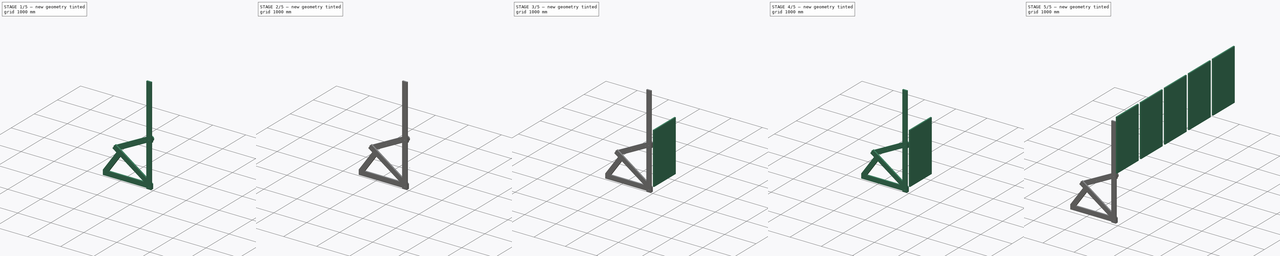
[diagram: build sequence overview — one tinted view per stage of 5, left to right]
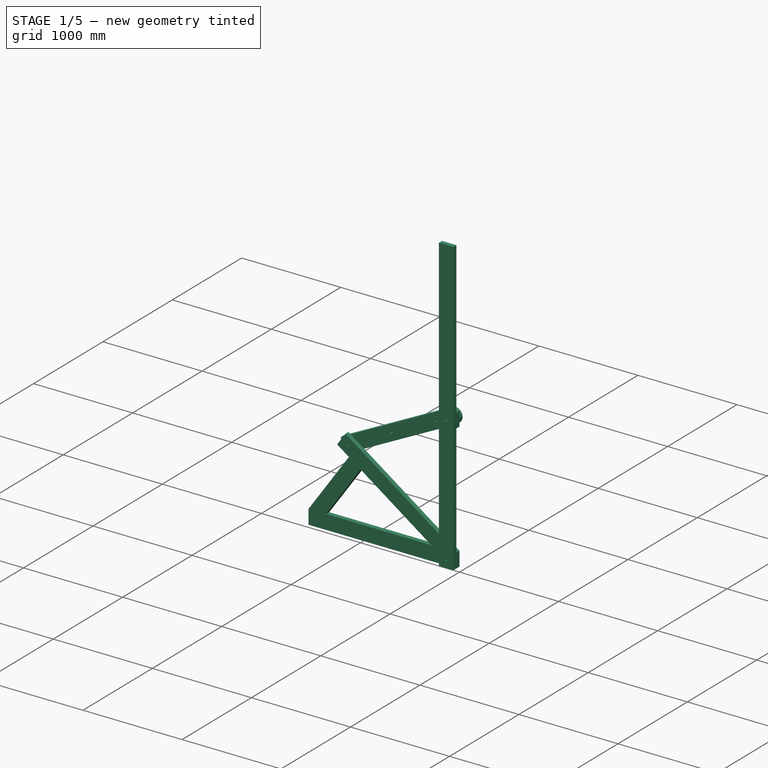
[diagram: stage 1 of 5 — iso view after this stage's code; geometry added in this stage tinted green]
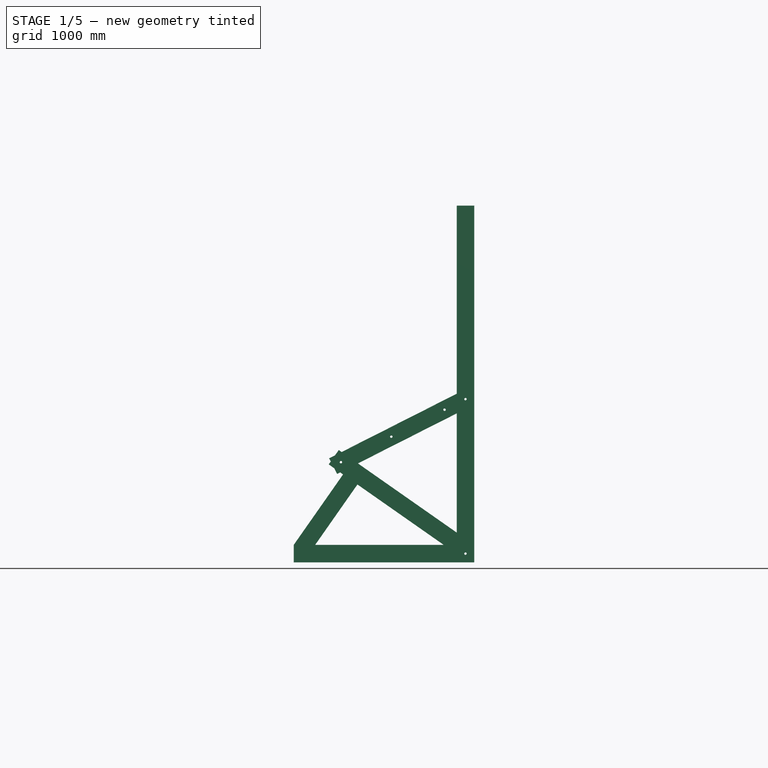
[diagram: stage 1 of 5 — front view after this stage's code; geometry added in this stage tinted green]
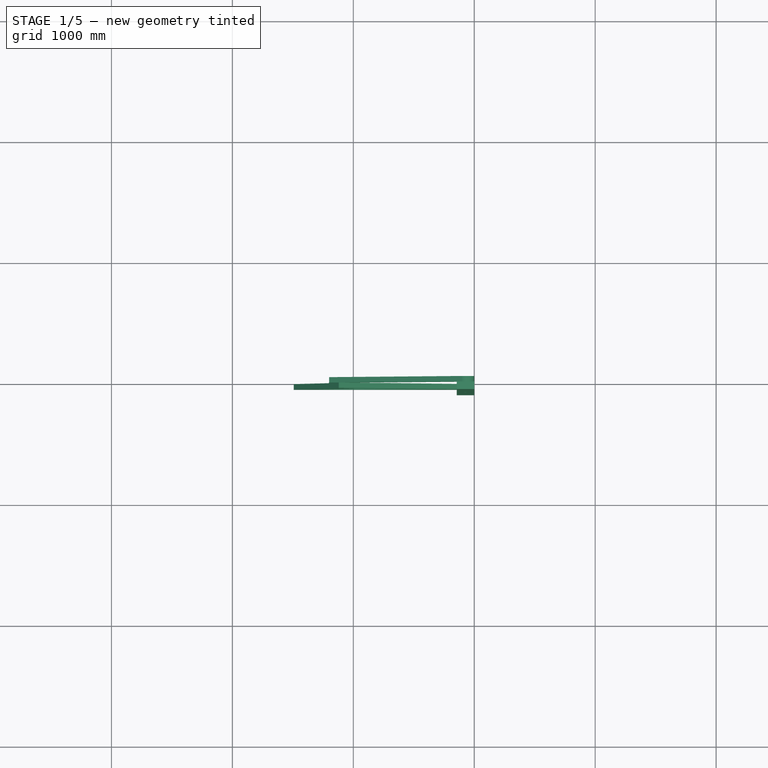
[diagram: stage 1 of 5 — top view after this stage's code; geometry added in this stage tinted green]
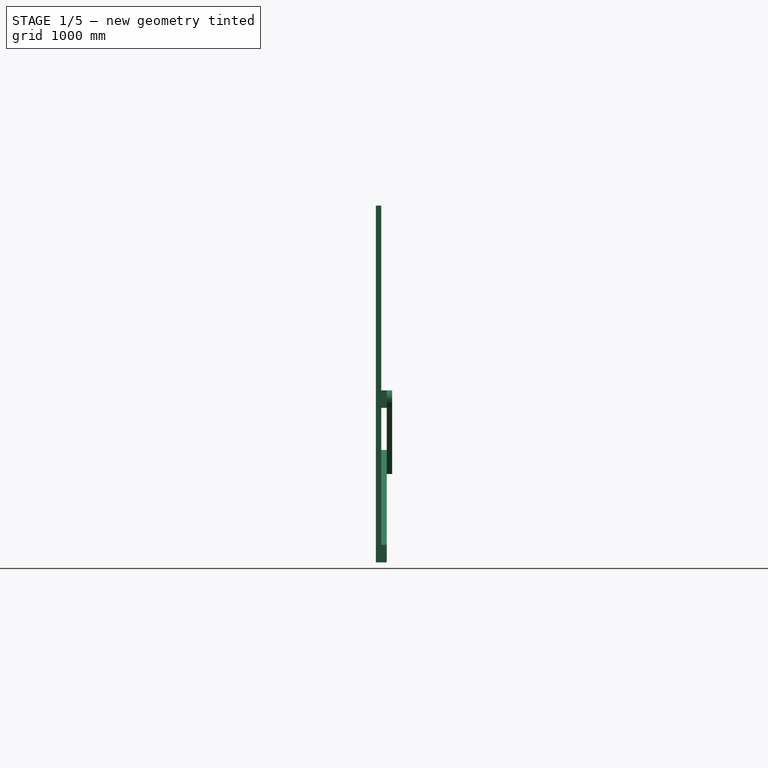
[diagram: stage 1 of 5 — right view after this stage's code; geometry added in this stage tinted green]
FCSTD DOCUMENT  (FreeCAD 0.16R)
Label: solar_mount3
License: All rights reserved
LicenseURL: http://en.wikipedia.org/wiki/All_rights_reserved
objects: Sketcher::SketchObject×7, PartDesign::Pad×7, Part::Cut×4, Part::Cylinder×4, Part::Fuse×2, Part::FeaturePython×1, App::DocumentObjectGroup×1
note: 32 computed .brp shape members not serialized (recipe doc carries the construction recipe); baked Part::Feature solids carry a one-line shape summary decoded from their .brp

FEATURE [App::DocumentObjectGroup] Group  label="Panels"
  Group = -> [Cut003,Array]
FEATURE [Sketcher::SketchObject] Sketch010
  Placement = pos=(0,0,0) rot=(-1,0,0;4.71239rad)
  sketch-geometry (18):
    g0: LineSegment StartX=0 StartY=0 StartZ=0 EndX=-1120.18 EndY=784.358 EndZ=0
    g1: LineSegment StartX=-1120.18 StartY=784.358 StartZ=0 EndX=-1203.35 EndY=665.581 EndZ=0
    g2: LineSegment StartX=-1203.35 StartY=665.581 StartZ=0 EndX=-1084.57 EndY=582.413 EndZ=0
    g3: LineSegment [constr] StartX=-1084.57 StartY=582.413 StartZ=0 EndX=-965.794 EndY=499.244 EndZ=0
    g4: LineSegment StartX=-965.794 StartY=499.244 StartZ=0 EndX=-252.8 EndY=0 EndZ=0
    g5: LineSegment [constr] StartX=-252.8 StartY=0 StartZ=0 EndX=0 EndY=0 EndZ=0
    g6: LineSegment StartX=0 StartY=-145 StartZ=0 EndX=-1492.38 EndY=-145 EndZ=0
    g7: LineSegment StartX=-1492.38 StartY=-145 StartZ=0 EndX=-1492.38 EndY=0 EndZ=0
    g8: LineSegment [constr] StartX=-1492.38 StartY=0 StartZ=0 EndX=-1315.37 EndY=0 EndZ=0
    g9: LineSegment StartX=-1315.37 StartY=0 StartZ=0 EndX=-252.8 EndY=0 EndZ=0
    g10: LineSegment StartX=-1492.38 StartY=0 StartZ=0 EndX=-1084.57 EndY=582.413 EndZ=0
    g11: LineSegment StartX=-965.794 StartY=499.244 StartZ=0 EndX=-1315.37 EndY=0 EndZ=0
    g12: Circle CenterX=-72.5 CenterY=-72.5 CenterZ=0 NormalX=0 NormalY=0 NormalZ=1 Radius=10
    g13: Circle CenterX=-1102.38 CenterY=683.385 CenterZ=0 NormalX=0 NormalY=0 NormalZ=1 Radius=10
    g14: LineSegment StartX=0 StartY=0 StartZ=0 EndX=0 EndY=-145 EndZ=0
    g15: LineSegment [constr] StartX=-1102.38 StartY=683.385 StartZ=0 EndX=-72.5 EndY=-72.5 EndZ=0
    g16: LineSegment [constr] StartX=-72.5 StartY=-72.5 StartZ=0 EndX=-72.5 EndY=1205 EndZ=0
    g17: LineSegment [constr] StartX=-72.5 StartY=1205 StartZ=0 EndX=0 EndY=1205 EndZ=0
  constraints (49):
    c: Coincident(g-1,g0)
    c: Coincident(g0,g1)
    c: Coincident(g1,g2)
    c: Coincident(g2,g3)
    c: Coincident(g3,g4)
    c: PointOnObject(g4,g-1)
    c: Coincident(g4,g5)
    c: Coincident(g5,g0)
    c: PointOnObject(g6,g-2)
    c: Horizontal(g6)
    c: Coincident(g6,g7)
    c: PointOnObject(g7,g-1)
    c: Vertical(g7)
    c: Coincident(g7,g8)
    c: PointOnObject(g8,g-1)
    c: Coincident(g8,g9)
    c: Coincident(g9,g4)
    c: Coincident(g7,g10)
    c: Coincident(g10,g2)
    c: Coincident(g3,g11)
    c: Coincident(g11,g8)
    c: Coincident(g-1,g14)
    c: Coincident(g14,g6)
    c: Parallel(g2,g3)
    c: Parallel(g3,g4)
    c: Parallel(g0,g4)
    c: Angle(g1,g0) = 1.5708
    c: Parallel(g10,g11)
    c: Angle(g9,g11) = 0.959931
    c: Angle(g4,g9) = 0.610865
    c: Distance(g1) = 145
    c: Distance(g3) = 145
    c: DistanceY(g14,g14) = 145
    c: Distance(g12,g14) = 72.5
    c: Distance(g12,g6) = 72.5
    c: Radius(g12) = 10
    c: Distance(g13,g0) = 72.5
    c: Distance(g13,g1) = 72.5
    c: Radius(g13) = 10
    c: Distance(g2) = 145
    c: Coincident(g15,g13)
    c: Coincident(g15,g12)
    c: Coincident(g16,g12)
    c: Vertical(g16)
    c: Coincident(g16,g17)
    c: Horizontal(g17)
    c: DistanceY(g6,g17) = 1350
    c: PointOnObject(g17,g-2)
    c: Equal(g16,g15)
FEATURE [PartDesign::Pad] Pad003
  Length = 45
  Length2 = 100
  Placement = pos=(0,0,0) rot=(-1,0,0;4.71239rad)
  Sketch = -> Sketch010
  Type = 0
FEATURE [Sketcher::SketchObject] Sketch011
  Placement = pos=(0,-45,0) rot=(-1,0,0;4.71239rad)
  sketch-geometry (7):
    g0: LineSegment StartX=0 StartY=-145 StartZ=0 EndX=-145 EndY=-145 EndZ=0
    g1: LineSegment StartX=-145 StartY=-145 StartZ=0 EndX=-145 EndY=2805 EndZ=0
    g2: LineSegment StartX=-145 StartY=2805 StartZ=0 EndX=0 EndY=2805 EndZ=0
    g3: LineSegment StartX=0 StartY=2805 StartZ=0 EndX=0 EndY=0 EndZ=0
    g4: LineSegment StartX=0 StartY=0 StartZ=0 EndX=0 EndY=-145 EndZ=0
    g5: Circle CenterX=-72.5 CenterY=-72.5 CenterZ=0 NormalX=0 NormalY=0 NormalZ=1 Radius=10
    g6: Circle CenterX=-72.5 CenterY=1205 CenterZ=0 NormalX=0 NormalY=0 NormalZ=1 Radius=10
  constraints (20):
    c: PointOnObject(g0,g-2)
    c: Horizontal(g0)
    c: Coincident(g0,g1)
    c: Vertical(g1)
    c: Coincident(g1,g2)
    c: Horizontal(g2)
    c: Coincident(g2,g3)
    c: Coincident(g3,g-1)
    c: Vertical(g3)
    c: Coincident(g3,g4)
    c: Coincident(g4,g0)
    c: Radius(g6) = 10
    c: Distance(g6,g3) = 72.5
    c: DistanceX(g0,g0) = 145
    c: Distance(g5,g4) = 72.5
    c: Radius(g5) = 10
    c: Distance(g5,g0) = 72.5
    c: Distance(g4) = 145
    c: Distance(g6,g0) = 1350
    c: Distance(g6,g2) = 1600
FEATURE [PartDesign::Pad] Pad004
  Length = 45
  Length2 = 100
  Placement = pos=(0,-45,0) rot=(-1,0,0;4.71239rad)
  Sketch = -> Sketch011
  Type = 0
FEATURE [Sketcher::SketchObject] Sketch012
  Placement = pos=(0,0,0) rot=(1,0,0;1.5708rad)
  sketch-geometry (6):
    g0: LineSegment StartX=-145 StartY=1277.5 StartZ=0 EndX=0 EndY=1277.5 EndZ=0
    g1: Circle CenterX=-72.5 CenterY=1205 CenterZ=0 NormalX=0 NormalY=0 NormalZ=1 Radius=10
    g2: LineSegment StartX=-145 StartY=1132.5 StartZ=0 EndX=0 EndY=1132.5 EndZ=0
    g3: LineSegment StartX=0 StartY=1277.5 StartZ=0 EndX=0 EndY=1132.5 EndZ=0
    g4: LineSegment StartX=-145 StartY=1277.5 StartZ=0 EndX=-145 EndY=1132.5 EndZ=0
    g5: GeomPoint [constr] X=-72.5 Y=-145 Z=0
  constraints (17):
    c: Horizontal(g0)
    c: Radius(g1) = 10
    c: Distance(g1,g0) = 72.5
    c: Horizontal(g2)
    c: Coincident(g0,g3)
    c: Coincident(g3,g2)
    c: Vertical(g3)
    c: Coincident(g0,g4)
    c: Coincident(g4,g2)
    c: Vertical(g4)
    c: DistanceX(g0,g0) = 145
    c: DistanceY(g4,g4) = 145
    c: DistanceY(g5,g-1) = 145
    c: DistanceX(g5,g-1) = 72.5
    c: DistanceY(g5,g1) = 1350
    c: Distance(g1,g3) = 72.5
    c: PointOnObject(g2,g-2)
FEATURE [PartDesign::Pad] Pad005
  Length = 45
  Length2 = 100
  Placement = pos=(0,0,0) rot=(1,0,0;1.5708rad)
  Sketch = -> Sketch012
  Type = 0
FEATURE [Sketcher::SketchObject] Sketch013
  Placement = pos=(0,45,0) rot=(1,0,0;1.5708rad)
  sketch-geometry (27):
    g0: LineSegment [constr] StartX=0 StartY=0 StartZ=0 EndX=-1120.18 EndY=784.358 EndZ=0
    g1: LineSegment [constr] StartX=-1120.18 StartY=784.358 StartZ=0 EndX=-1203.35 EndY=665.581 EndZ=0
    g2: Circle [constr] CenterX=-72.5 CenterY=-72.5 CenterZ=0 NormalX=0 NormalY=0 NormalZ=1 Radius=10
    g3: Circle CenterX=-1102.38 CenterY=683.385 CenterZ=0 NormalX=0 NormalY=0 NormalZ=1 Radius=10
    g4: LineSegment [constr] StartX=0 StartY=0 StartZ=0 EndX=0 EndY=-145 EndZ=0
    g5: LineSegment [constr] StartX=-1102.38 StartY=683.385 StartZ=0 EndX=-72.5 EndY=-72.5 EndZ=0
    g6: ArcOfCircle CenterX=-72.5 CenterY=1205 CenterZ=0 NormalX=0 NormalY=0 NormalZ=1 Radius=72.5 StartAngle=5.18121 EndAngle=8.3228
    g7: LineSegment StartX=-105.258 StartY=1269.68 StartZ=0 EndX=-1199.81 EndY=715.305 EndZ=0
    g8: LineSegment StartX=-1199.81 StartY=715.305 StartZ=0 EndX=-1134.29 EndY=585.95 EndZ=0
    g9: LineSegment StartX=-39.742 StartY=1140.32 StartZ=0 EndX=-1134.29 EndY=585.95 EndZ=0
    g10: LineSegment [constr] StartX=-105.258 StartY=1269.68 StartZ=0 EndX=-39.742 EndY=1140.32 EndZ=0
    g11: Circle CenterX=-72.5 CenterY=1205 CenterZ=0 NormalX=0 NormalY=0 NormalZ=1 Radius=10
    g12: LineSegment [constr] StartX=-72.5 StartY=1205 StartZ=0 EndX=0 EndY=1205 EndZ=0
    g13: LineSegment [constr] StartX=-72.5 StartY=-72.5 StartZ=0 EndX=-72.5 EndY=1205 EndZ=0
    g14: LineSegment [constr] StartX=-72.5 StartY=-72.5 StartZ=0 EndX=-561.378 EndY=1107.76 EndZ=0
    g15: LineSegment [constr] StartX=-72.5 StartY=-72.5 StartZ=0 EndX=-975.829 EndY=830.829 EndZ=0
    g16: LineSegment [constr] StartX=-975.829 StartY=830.829 StartZ=0 EndX=-1102.38 EndY=683.385 EndZ=0
    g17: LineSegment [constr] StartX=-1102.38 StartY=683.385 StartZ=0 EndX=-561.378 EndY=1107.76 EndZ=0
    g18: LineSegment [constr] StartX=-72.5 StartY=1205 StartZ=0 EndX=-245.838 EndY=1117.21 EndZ=0
    g19: LineSegment [constr] StartX=-72.5 StartY=1205 StartZ=0 EndX=-685.893 EndY=894.327 EndZ=0
    g20: LineSegment [constr] StartX=-245.838 StartY=1117.21 StartZ=0 EndX=-1102.38 EndY=683.385 EndZ=0
    g21: LineSegment [constr] StartX=-1102.38 StartY=683.385 StartZ=0 EndX=-1727.7 EndY=-45.1964 EndZ=0
    g22: Circle CenterX=-685.893 CenterY=894.327 CenterZ=0 NormalX=0 NormalY=0 NormalZ=1 Radius=10
    g23: Circle CenterX=-245.838 CenterY=1117.21 CenterZ=0 NormalX=0 NormalY=0 NormalZ=1 Radius=10
    g24: LineSegment [constr] StartX=-1727.7 StartY=-45.1964 StartZ=0 EndX=-1774.91 EndY=-100.212 EndZ=0
    g25: LineSegment [constr] StartX=-1774.91 StartY=-100.212 StartZ=0 EndX=-1719.9 EndY=-147.43 EndZ=0
    g26: LineSegment [constr] StartX=-1719.9 StartY=-147.43 StartZ=0 EndX=-1219.9 EndY=-147.43 EndZ=0
  constraints (71):
    c: Coincident(g-1,g0)
    c: Coincident(g0,g1)
    c: PointOnObject(g4,g-2)
    c: Coincident(g-1,g4)
    c: Angle(g1,g0) = 1.5708
    c: Distance(g1) = 145
    c: DistanceY(g4,g4) = 145
    c: Distance(g2,g4) = 72.5
    c: Radius(g2) = 10
    c: Distance(g3,g0) = 72.5
    c: Distance(g3,g1) = 72.5
    c: Radius(g3) = 10
    c: Coincident(g5,g3)
    c: Coincident(g5,g2)
    c: DistanceY(g4,g12) = 1350
    c: Angle(g-1,g0) = 2.53073
    c: DistanceY(g2,g-1) = 72.5
    c: Tangent(g6,g7) = -1.5708
    c: Coincident(g7,g8)
    c: Tangent(g6,g9) = 1.5708
    c: Coincident(g9,g8)
    c: Coincident(g10,g6)
    c: Coincident(g10,g6)
    c: Parallel(g10,g8)
    c: Equal(g10,g8)
    c: DistanceX(g6,g12) = 72.5
    c: DistanceY(g6,g12) = 0
    c: Distance(g3,g7) = 72.5
    c: Distance(g8) = 145
    c: Distance(g3,g8) = 72.5
    c: Coincident(g11,g6)
    c: Radius(g11) = 10
    c: Coincident(g12,g6)
    c: PointOnObject(g12,g-2)
    c: Coincident(g13,g2)
    c: Coincident(g13,g6)
    c: Coincident(g14,g2)
    c: Coincident(g15,g2)
    c: Angle(g13,g14) = 0.392699
    c: Angle(g13,g15) = 0.785398
    c: Equal(g13,g14)
    c: Equal(g14,g15)
    c: Coincident(g15,g16)
    c: Coincident(g16,g3)
    c: Coincident(g16,g17)
    c: Coincident(g17,g14)
    c: Equal(g5,g13)
    c: Coincident(g18,g6)
    c: Coincident(g19,g6)
    c: Equal(g18,g16)
    c: Equal(g19,g17)
    c: Coincident(g18,g20)
    c: Coincident(g20,g3)
    c: Coincident(g20,g21)
    c: Equal(g21,g20)
    c: Parallel(g21,g16)
    c: Parallel(g19,g9)
    c: Parallel(g18,g9)
    c: Coincident(g22,g19)
    c: Coincident(g23,g18)
    c: Radius(g23) = 10
    c: Radius(g22) = 10
    c: Coincident(g21,g24)
    c: Coincident(g24,g25)
    c: Parallel(g24,g21)
    c: Angle(g25,g24) = 1.5708
    c: Distance(g24) = 72.5
    c: Distance(g25) = 72.5
    c: Coincident(g25,g26)
    c: Horizontal(g26)
    c: DistanceX(g26,g26) = 500
FEATURE [PartDesign::Pad] Pad006
  Length = 45
  Length2 = 100
  Placement = pos=(0,45,0) rot=(1,0,0;1.5708rad)
  Sketch = -> Sketch013
  Type = 0
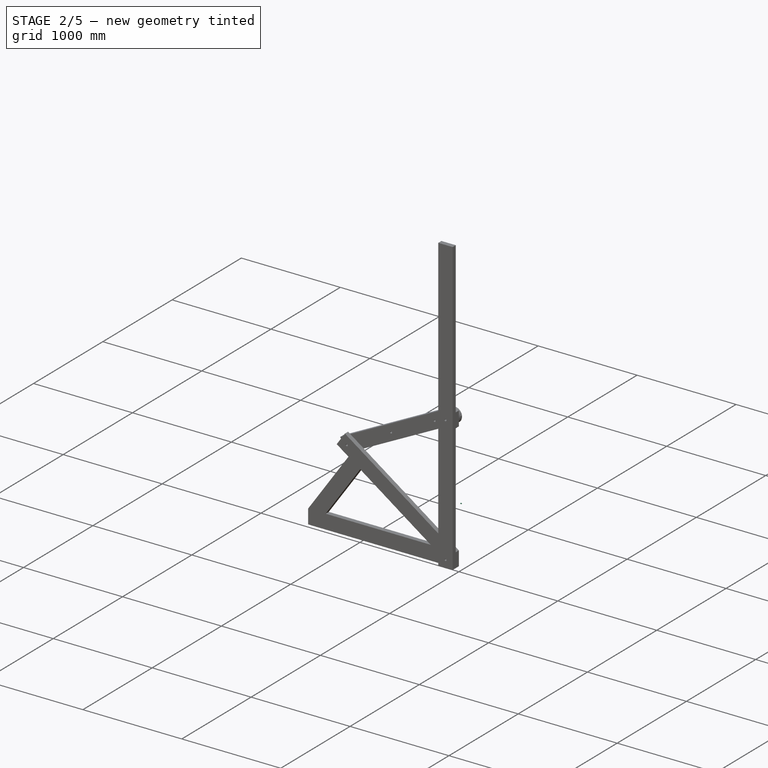
[diagram: stage 2 of 5 — iso view after this stage's code; geometry added in this stage tinted green]
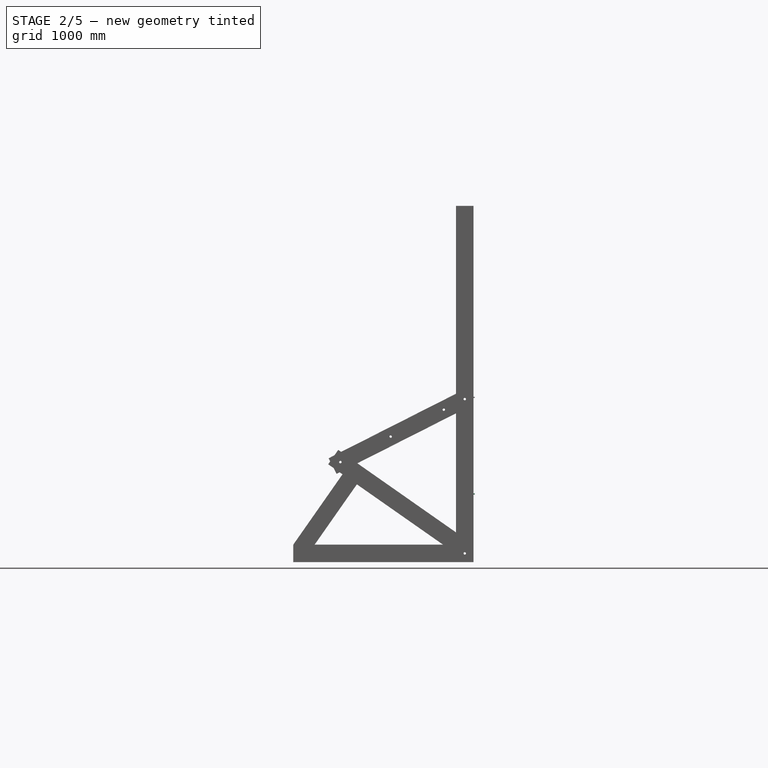
[diagram: stage 2 of 5 — front view after this stage's code; geometry added in this stage tinted green]
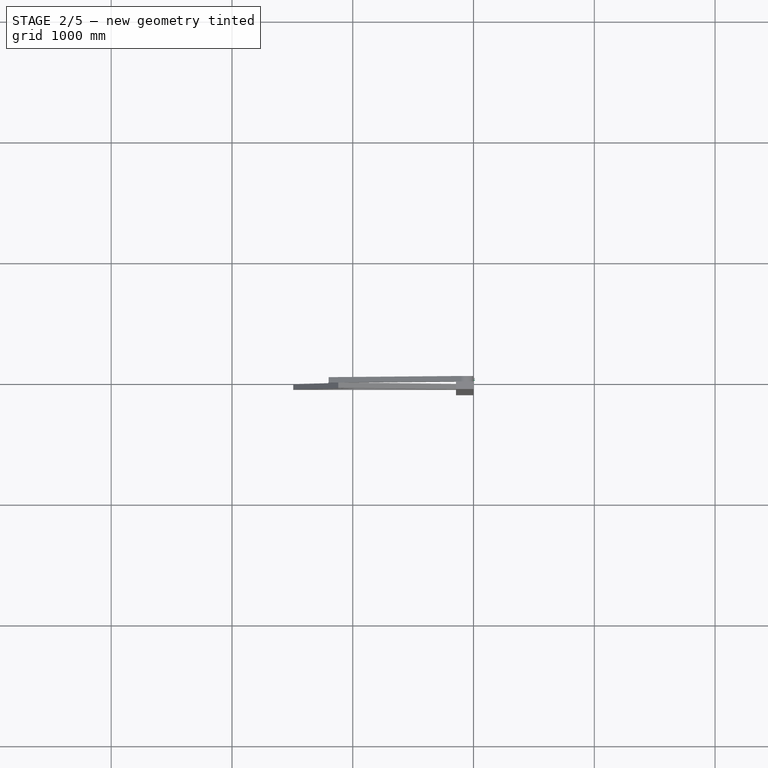
[diagram: stage 2 of 5 — top view after this stage's code; geometry added in this stage tinted green]
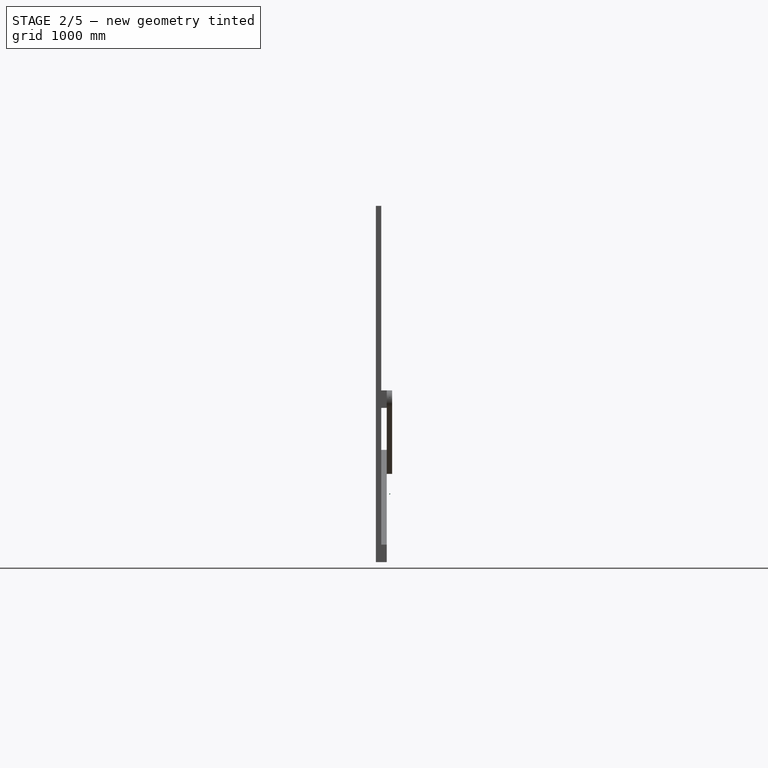
[diagram: stage 2 of 5 — right view after this stage's code; geometry added in this stage tinted green]
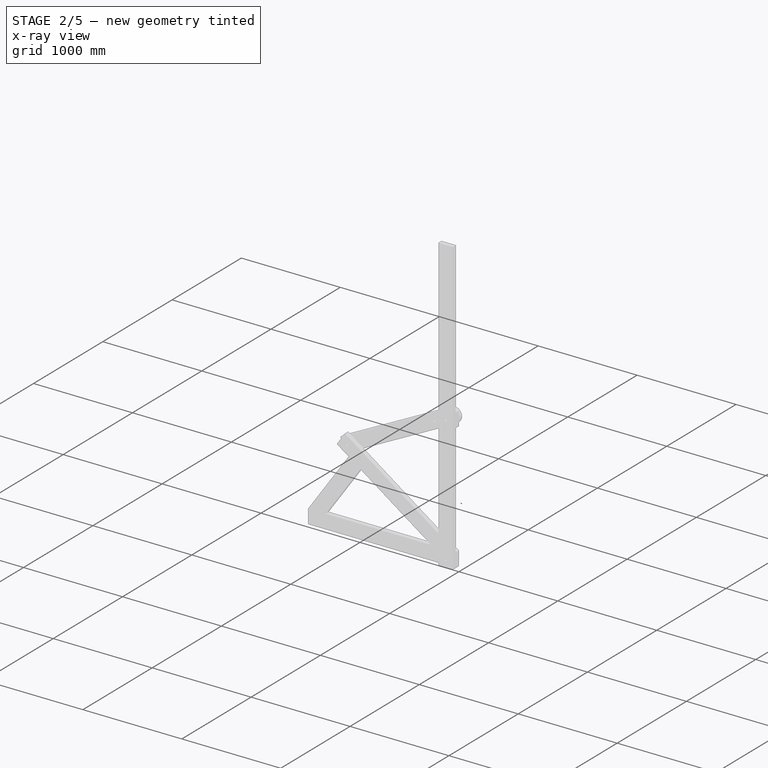
[diagram: stage 2 of 5 — x-ray composite at the iso view; earlier geometry ghosted, this stage's added geometry solid]
FEATURE [Part::Cylinder] Cylinder
  Angle = 360
  Height = 10
  Placement = pos=(0,25,420) rot=(0,1,0;1.5708rad)
  Radius = 4.5
FEATURE [Part::Cylinder] Cylinder001
  Angle = 360
  Height = 10
  Placement = pos=(0,25,1220) rot=(0,1,0;1.5708rad)
  Radius = 4.5
FEATURE [Part::Fuse] Fusion
  Base = -> Cylinder
  Tool = -> Cylinder001
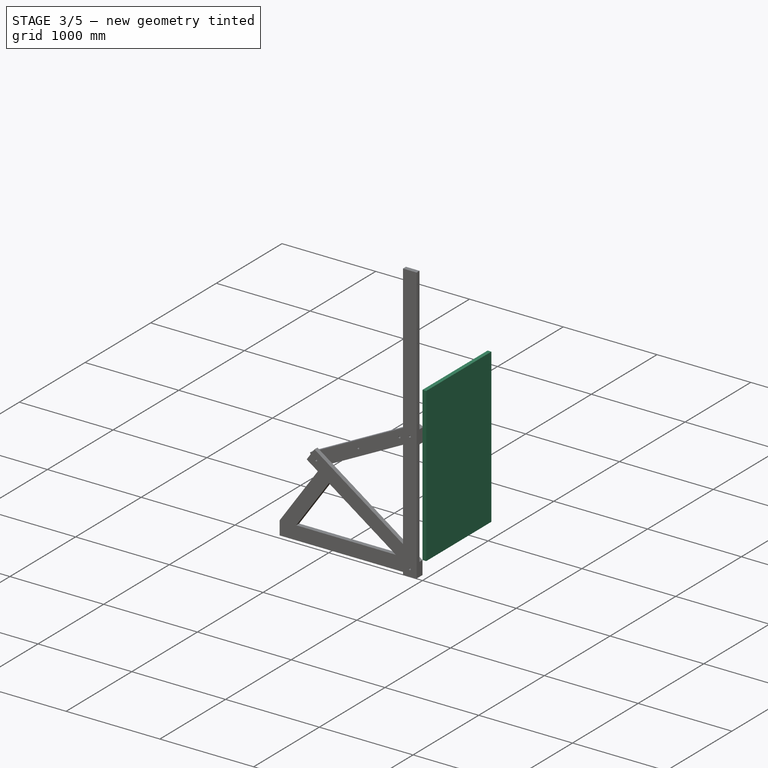
[diagram: stage 3 of 5 — iso view after this stage's code; geometry added in this stage tinted green]
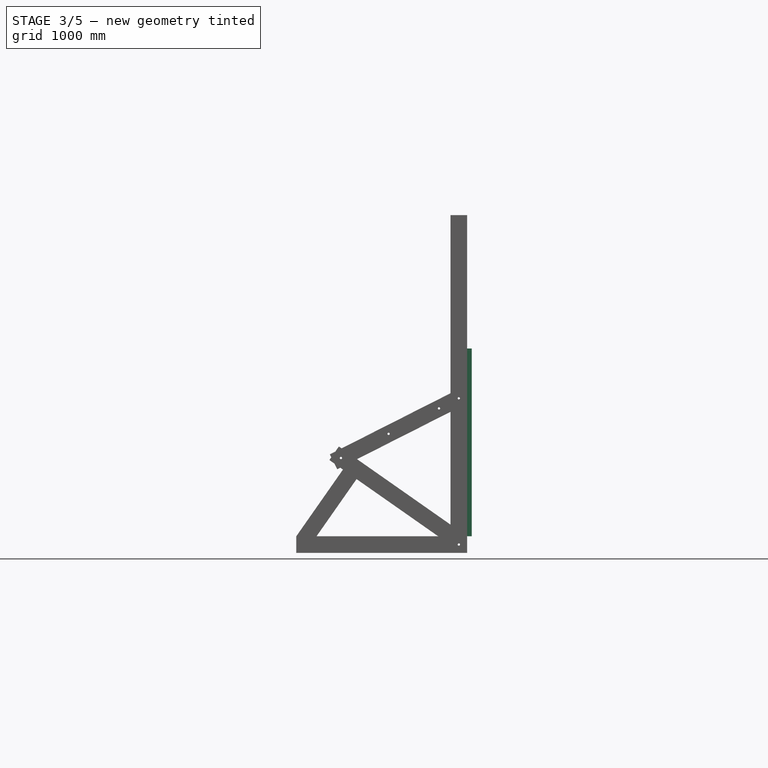
[diagram: stage 3 of 5 — front view after this stage's code; geometry added in this stage tinted green]
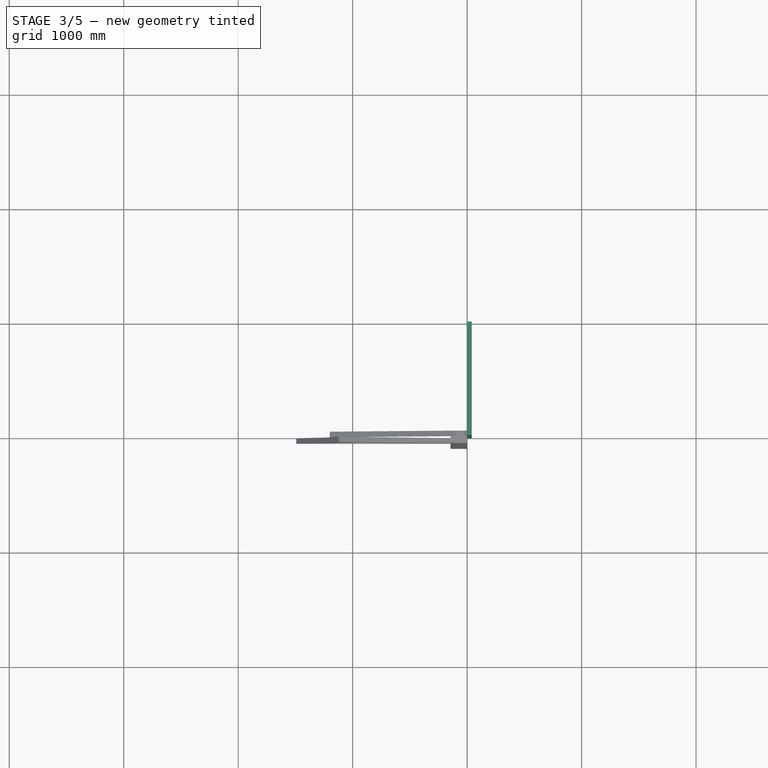
[diagram: stage 3 of 5 — top view after this stage's code; geometry added in this stage tinted green]
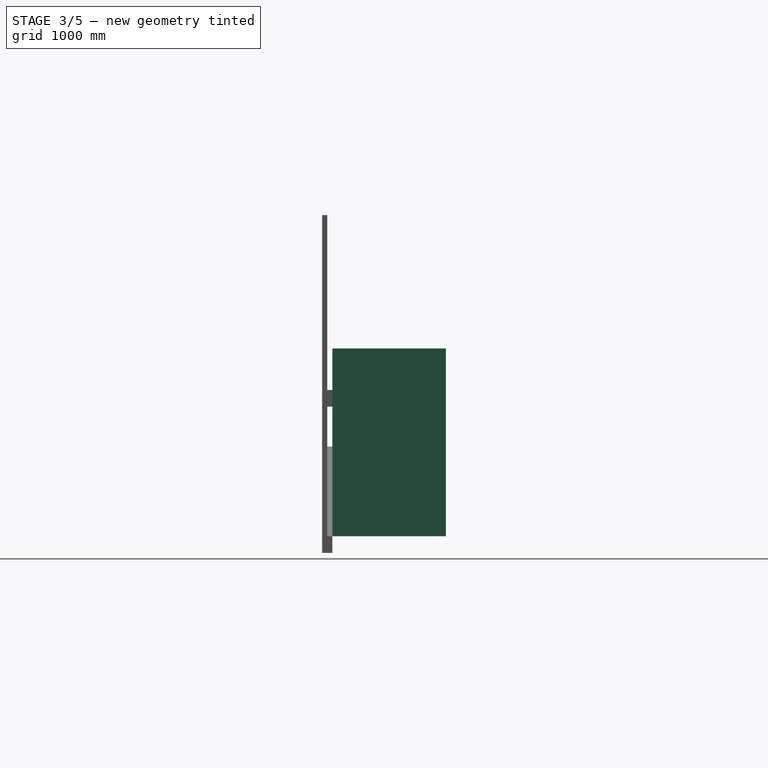
[diagram: stage 3 of 5 — right view after this stage's code; geometry added in this stage tinted green]
FEATURE [Sketcher::SketchObject] Sketch
  Placement = pos=(0,0,0) rot=(0.57735,0.57735,0.57735;2.0944rad)
  sketch-geometry (4):
    g0: LineSegment StartX=0 StartY=0 StartZ=0 EndX=992 EndY=0 EndZ=0
    g1: LineSegment StartX=992 StartY=0 StartZ=0 EndX=992 EndY=1640 EndZ=0
    g2: LineSegment StartX=992 StartY=1640 StartZ=0 EndX=0 EndY=1640 EndZ=0
    g3: LineSegment StartX=0 StartY=1640 StartZ=0 EndX=0 EndY=0 EndZ=0
  constraints (11):
    c: Coincident(g0,g1)
    c: Coincident(g1,g2)
    c: Coincident(g2,g3)
    c: Coincident(g3,g0)
    c: Horizontal(g0)
    c: Horizontal(g2)
    c: Vertical(g1)
    c: Vertical(g3)
    c: Coincident(g0,g-1)
    c: DistanceX(g0,g0) = 992
    c: DistanceY(g3,g3) = 1640
FEATURE [PartDesign::Pad] Pad  label="Bas"
  Length = 40
  Length2 = 100
  Placement = pos=(0,0,0) rot=(0.57735,0.57735,0.57735;2.0944rad)
  Sketch = -> Sketch
  Type = 0
FEATURE [Sketcher::SketchObject] Sketch001
  Placement = pos=(0,0,0) rot=(0.57735,0.57735,0.57735;2.0944rad)
  sketch-geometry (4):
    g0: LineSegment StartX=35 StartY=35 StartZ=0 EndX=957 EndY=35 EndZ=0
    g1: LineSegment StartX=957 StartY=35 StartZ=0 EndX=957 EndY=1605 EndZ=0
    g2: LineSegment StartX=957 StartY=1605 StartZ=0 EndX=35 EndY=1605 EndZ=0
    g3: LineSegment StartX=35 StartY=1605 StartZ=0 EndX=35 EndY=35 EndZ=0
  constraints (12):
    c: Coincident(g0,g1)
    c: Coincident(g1,g2)
    c: Coincident(g2,g3)
    c: Coincident(g3,g0)
    c: Horizontal(g0)
    c: Horizontal(g2)
    c: Vertical(g1)
    c: Vertical(g3)
    c: DistanceX(g-2,g0) = 35
    c: DistanceY(g-1,g0) = 35
    c: DistanceX(g0,g0) = 922
    c: DistanceY(g1,g1) = 1570
FEATURE [PartDesign::Pad] Pad001  label="Gröpner"
  Length = 20
  Length2 = 100
  Placement = pos=(0,0,0) rot=(0.57735,0.57735,0.57735;2.0944rad)
  Sketch = -> Sketch001
  Type = 0
FEATURE [Sketcher::SketchObject] Sketch002
  Placement = pos=(3,0,0) rot=(0.57735,0.57735,0.57735;2.0944rad)
  sketch-geometry (4):
    g0: LineSegment StartX=11 StartY=11 StartZ=0 EndX=981 EndY=11 EndZ=0
    g1: LineSegment StartX=981 StartY=11 StartZ=0 EndX=981 EndY=1629 EndZ=0
    g2: LineSegment StartX=981 StartY=1629 StartZ=0 EndX=11 EndY=1629 EndZ=0
    g3: LineSegment StartX=11 StartY=1629 StartZ=0 EndX=11 EndY=11 EndZ=0
  constraints (12):
    c: Coincident(g0,g1)
    c: Coincident(g1,g2)
    c: Coincident(g2,g3)
    c: Coincident(g3,g0)
    c: Horizontal(g0)
    c: Horizontal(g2)
    c: Vertical(g1)
    c: Vertical(g3)
    c: DistanceX(g-2,g0) = 11
    c: DistanceY(g-1,g0) = 11
    c: DistanceX(g0,g0) = 970
    c: DistanceY(g1,g1) = 1618
FEATURE [PartDesign::Pad] Pad002  label="Gröpkant"
  Length = 27
  Length2 = 100
  Placement = pos=(3,0,0) rot=(0.57735,0.57735,0.57735;2.0944rad)
  Sketch = -> Sketch002
  Type = 0
FEATURE [Part::Cut] Cut
  Base = -> Pad
  Tool = -> Pad001
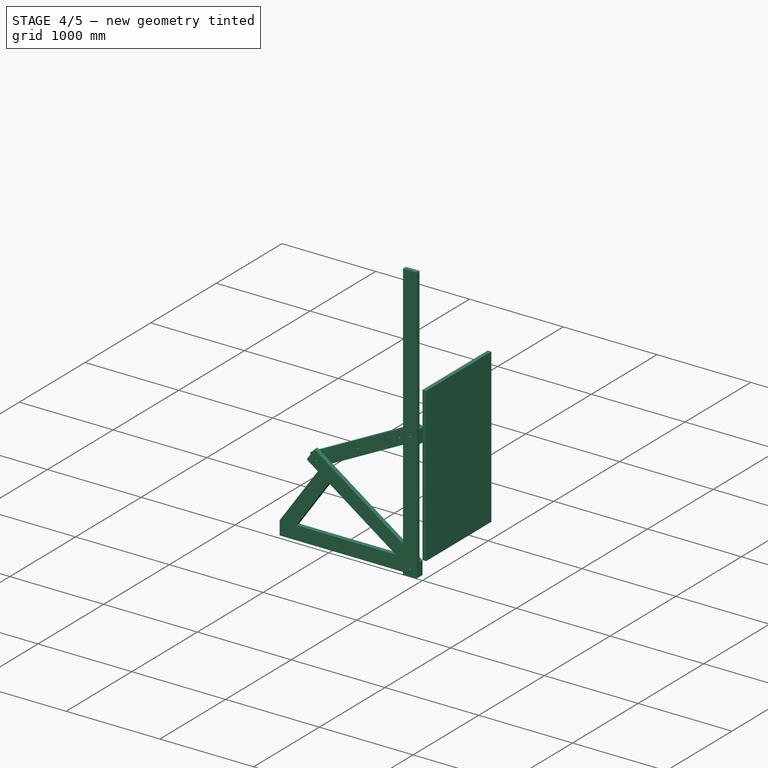
[diagram: stage 4 of 5 — iso view after this stage's code; geometry added in this stage tinted green]
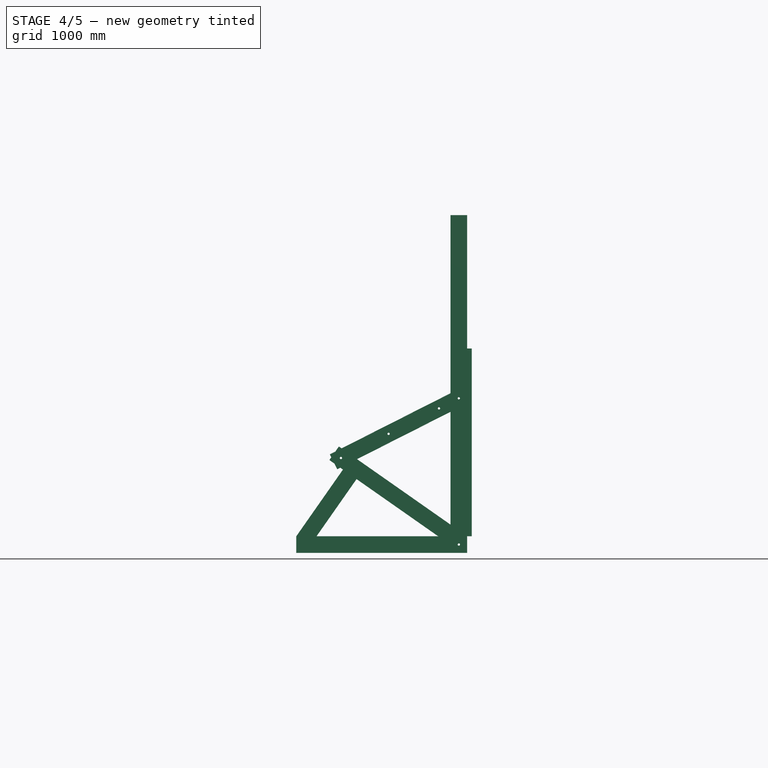
[diagram: stage 4 of 5 — front view after this stage's code; geometry added in this stage tinted green]
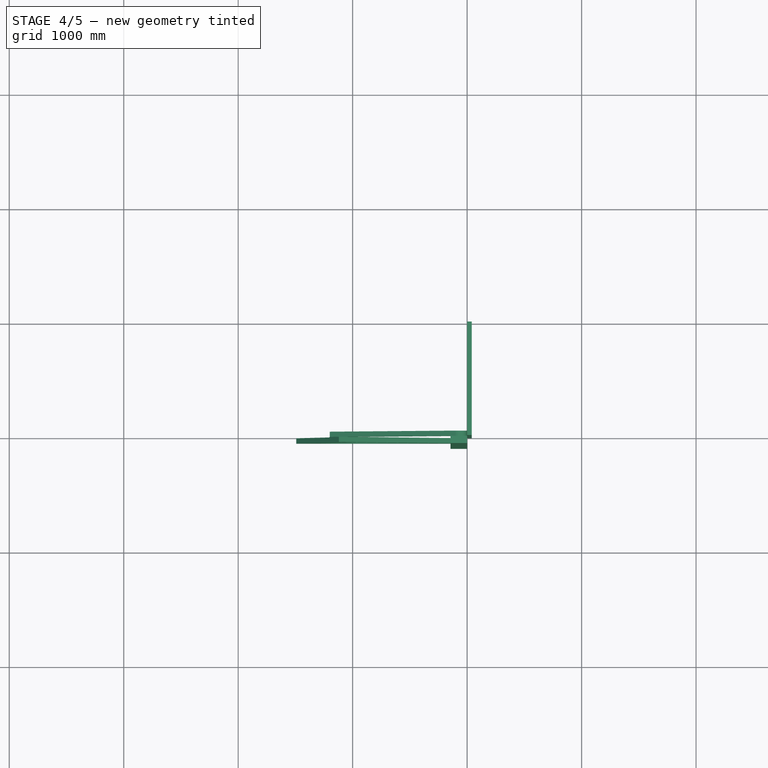
[diagram: stage 4 of 5 — top view after this stage's code; geometry added in this stage tinted green]
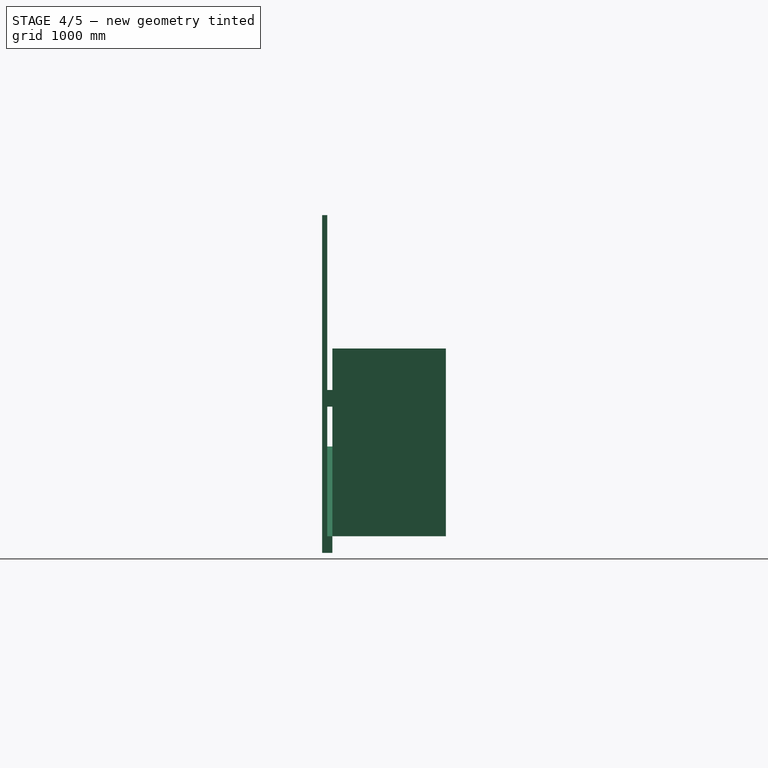
[diagram: stage 4 of 5 — right view after this stage's code; geometry added in this stage tinted green]
FEATURE [Part::Cut] Cut001
  Base = -> Cut
  Tool = -> Pad002
FEATURE [Part::Cylinder] Cylinder003
  Angle = 360
  Height = 10
  Placement = pos=(0,25,1220) rot=(0,1,0;1.5708rad)
  Radius = 4.5
FEATURE [Part::Cut] Cut002
  Base = -> Cut001
  Tool = -> Fusion
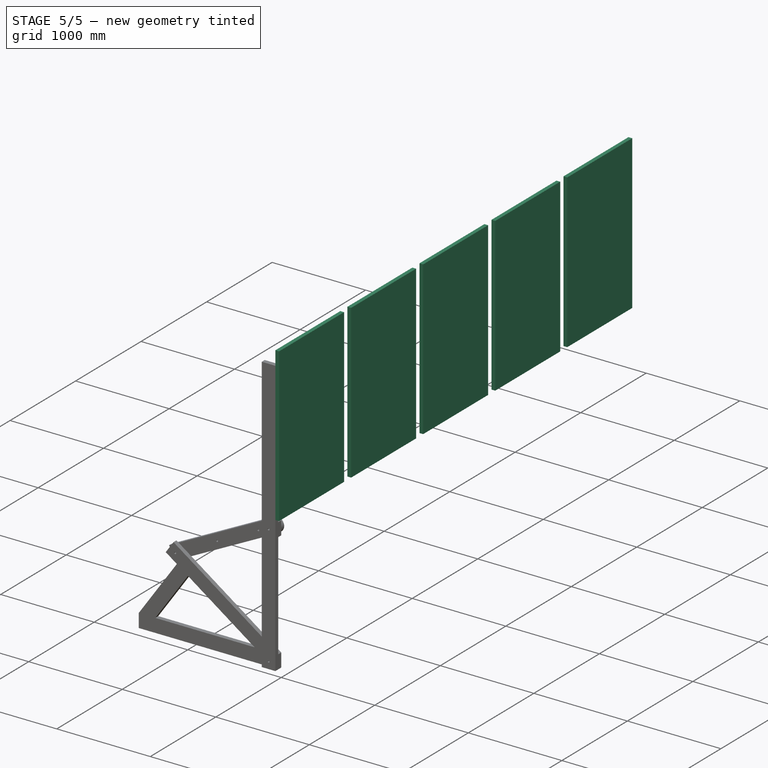
[diagram: stage 5 of 5 — iso view after this stage's code; geometry added in this stage tinted green]
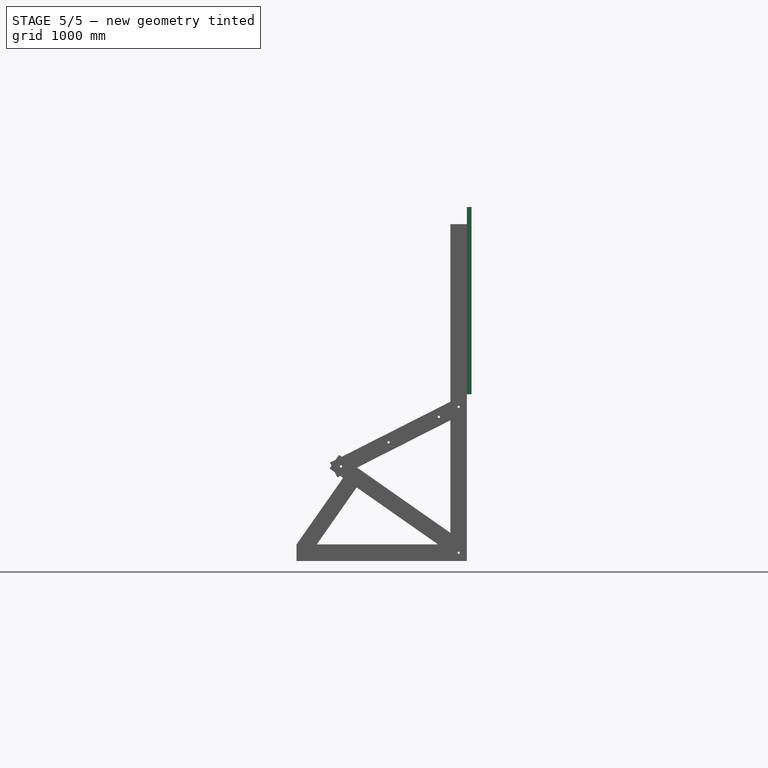
[diagram: stage 5 of 5 — front view after this stage's code; geometry added in this stage tinted green]
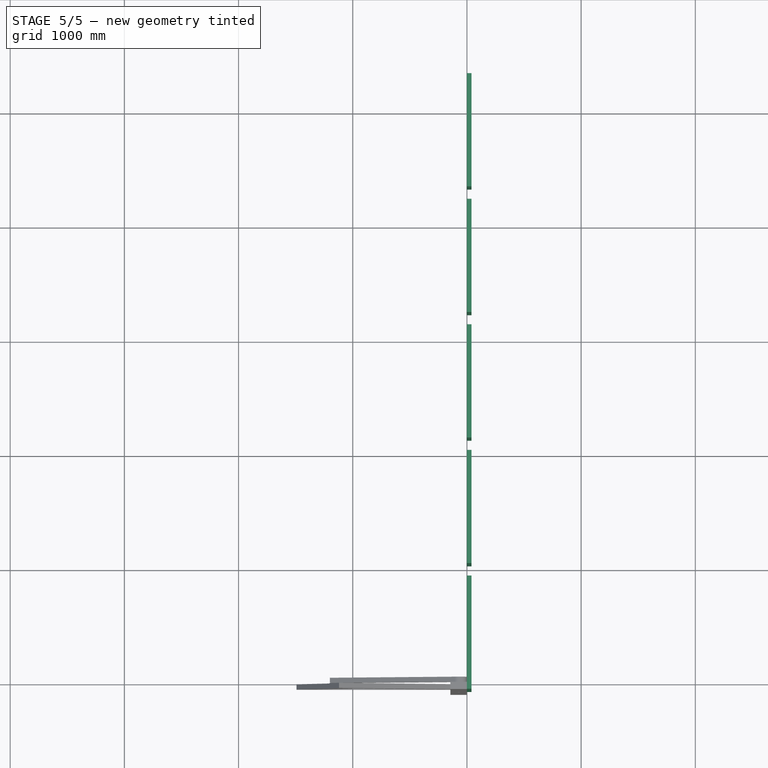
[diagram: stage 5 of 5 — top view after this stage's code; geometry added in this stage tinted green]
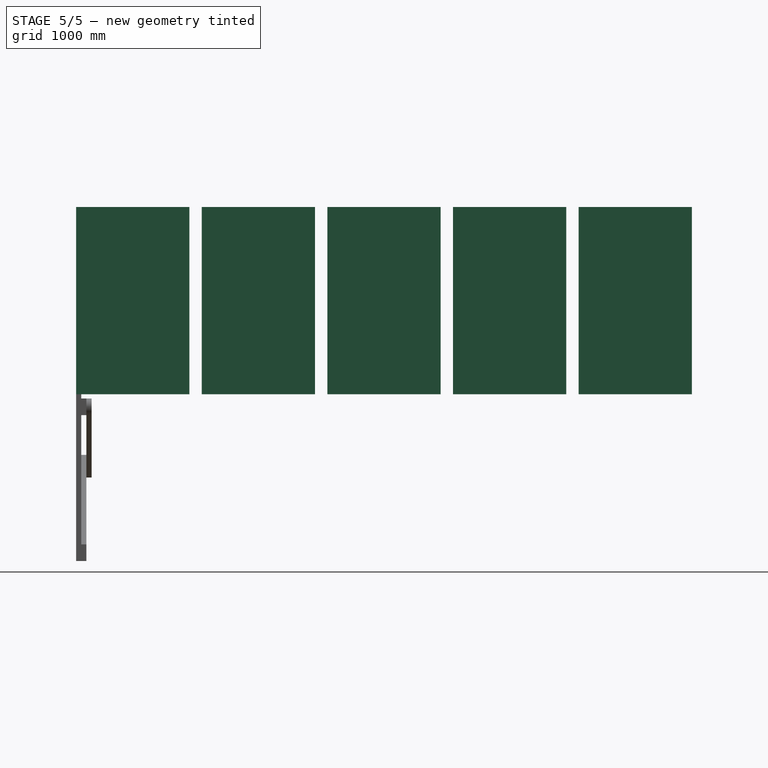
[diagram: stage 5 of 5 — right view after this stage's code; geometry added in this stage tinted green]
FEATURE [Part::Cylinder] Cylinder002
  Angle = 360
  Height = 10
  Placement = pos=(0,25,420) rot=(0,1,0;1.5708rad)
  Radius = 4.5
FEATURE [Part::Fuse] Fusion001
  Base = -> Cylinder002
  Placement = pos=(0,942,0) rot=(0,0,1;0rad)
  Tool = -> Cylinder003
FEATURE [Part::Cut] Cut003  label="Solar panel w holes"
  Base = -> Cut002
  Placement = pos=(-1.507e-09,0,1305.59) rot=(0,0,1;0rad)
  Tool = -> Fusion001
FEATURE [Part::FeaturePython] Array  # Draft array (typed FeaturePython)
  Angle = 360
  ArrayType = 0
  Axis = (0,0,1)
  Base = -> Cut003
  Center = (0,0,0)
  Fuse = false
  IntervalAxis = (0,0,0)
  IntervalX = (1,0,0)
  IntervalY = (0,1100,0)
  IntervalZ = (0,0,0)
  NumberPolar = 1
  NumberX = 1
  NumberY = 5
  NumberZ = 1
  Placement = pos=(1.5e-09,-90,9.41) rot=(0,0,1;0rad)
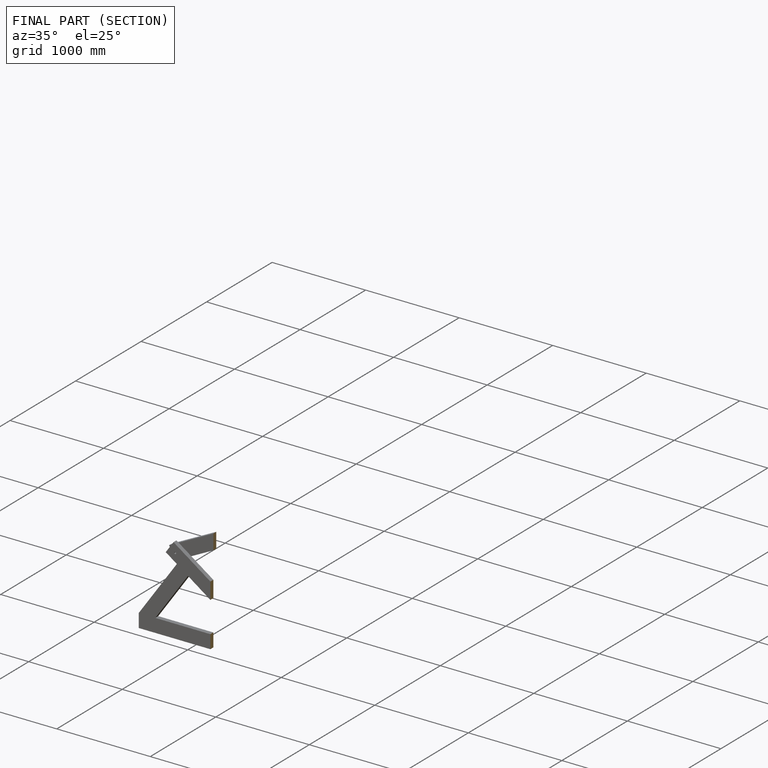
[diagram: finished part — half-section view (interior)]
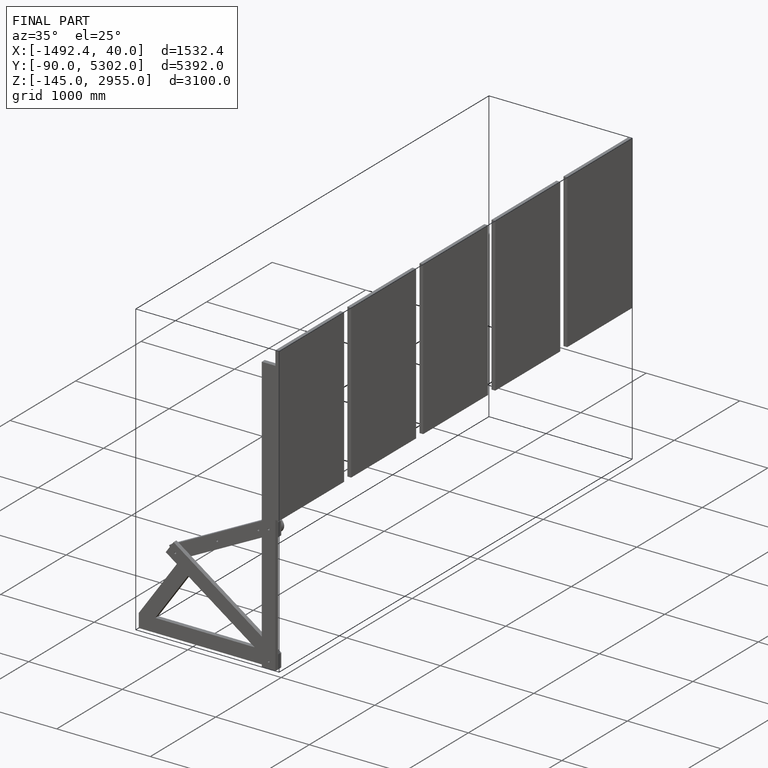
[diagram: finished part — iso view with bounding-box wireframe]
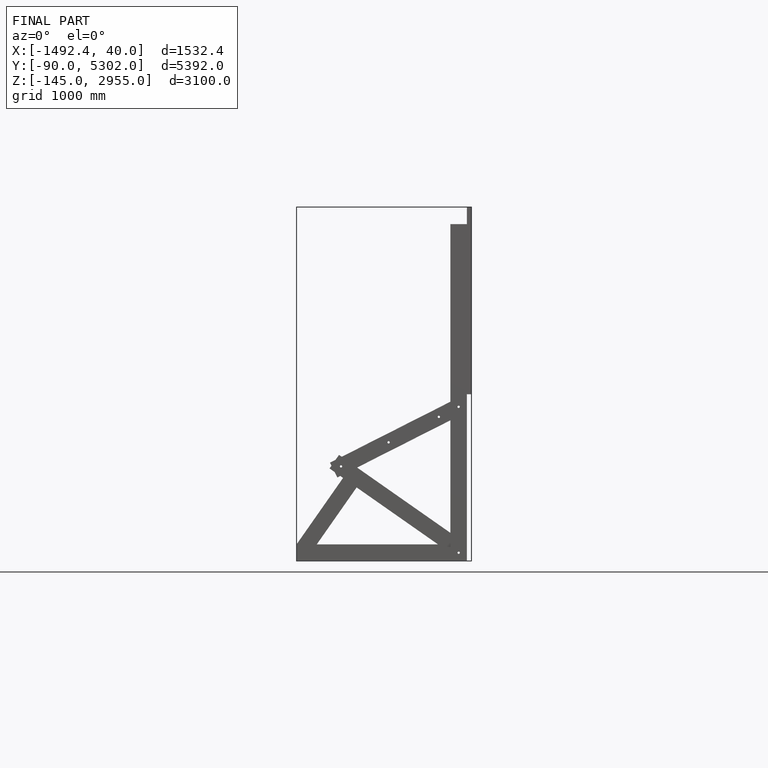
[diagram: finished part — front view with bounding-box wireframe]
